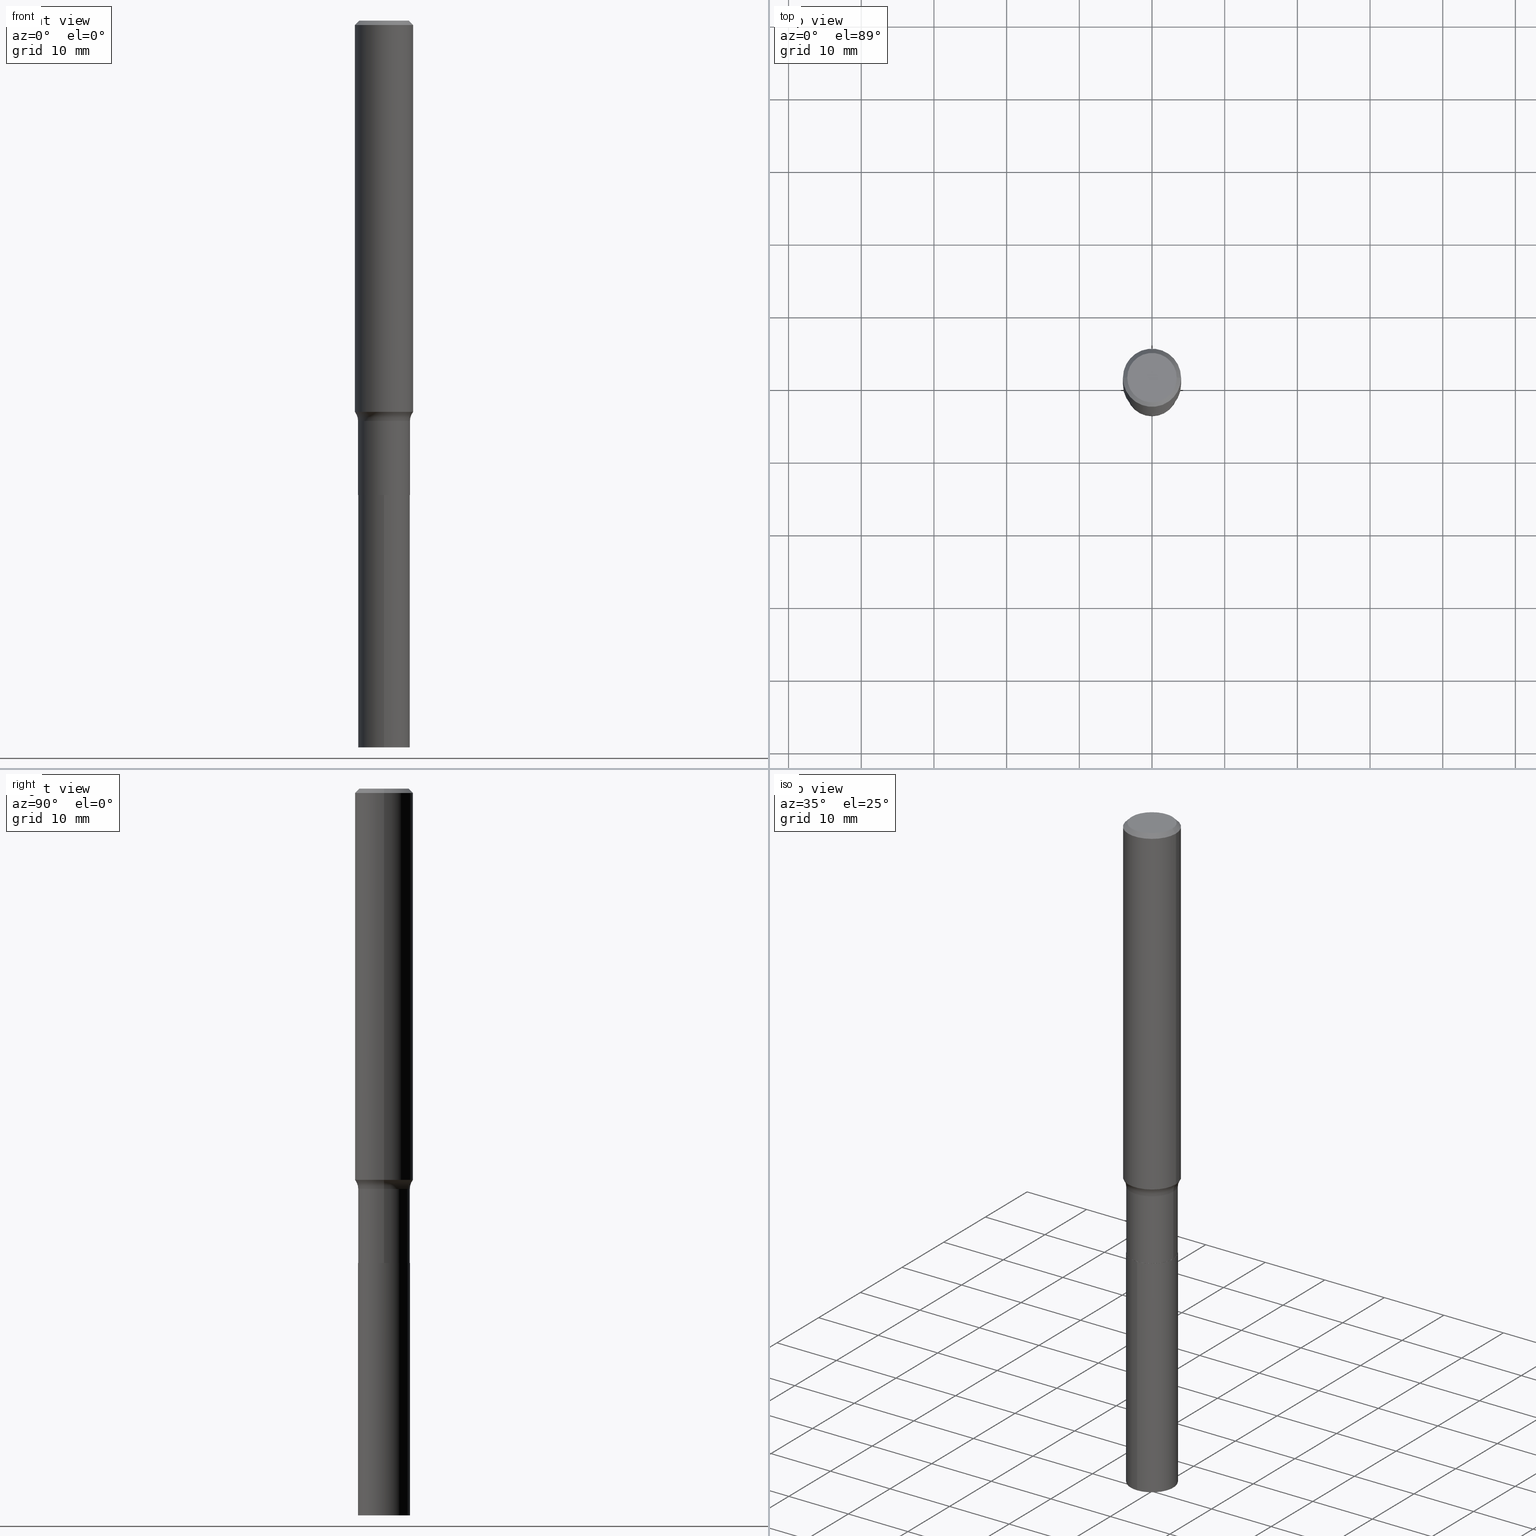
[diagram: canonical four-view strip — front | top / right | iso, engineering-drawing reading convention]
A machine part, canonical four-view strip (front | top / right | iso — engineering-drawing reading convention). The complete STEP part file that produces these views, byte-faithful:
ISO-10303-21;
HEADER;
FILE_DESCRIPTION (( 'STEP AP203' ),
    '1' );
FILE_NAME ('58893.STEP',
    '2024-04-19T14:48:24',
    ( '' ),
    ( '' ),
    'SwSTEP 2.0',
    'SolidWorks 2023',
    '' );
FILE_SCHEMA (( 'CONFIG_CONTROL_DESIGN' ));
ENDSEC;

DATA;
#1 = AXIS2_PLACEMENT_3D ( 'NONE', #40, #228, #186 ) ;
#2 = PRODUCT_DEFINITION_FORMATION_WITH_SPECIFIED_SOURCE ( 'ANY', '', #51, .NOT_KNOWN. ) ;
#3 = DATE_TIME_ROLE ( 'classification_date' ) ;
#4 = EDGE_CURVE ( 'NONE', #378, #241, #91, .T. ) ;
#5 = CARTESIAN_POINT ( 'NONE',  ( -0.1575000000000001676, 1.119104808822158984E-15, -7.747322767151485392E-30 ) ) ;
#6 = DIRECTION ( 'NONE',  ( 1.000000000000000000, -6.982962677686265133E-15, 0.000000000000000000 ) ) ;
#7 = FACE_OUTER_BOUND ( 'NONE', #173, .T. ) ;
#8 = VERTEX_POINT ( 'NONE', #213 ) ;
#9 = EDGE_CURVE ( 'NONE', #362, #246, #190, .T. ) ;
#10 = CIRCLE ( 'NONE', #276, 0.1406000000000000028 ) ;
#11 = AXIS2_PLACEMENT_3D ( 'NONE', #167, #129, #57 ) ;
#12 = DIRECTION ( 'NONE',  ( -2.445468806185136597E-29, 3.491481338843145583E-15, 1.000000000000000000 ) ) ;
#13 = DIRECTION ( 'NONE',  ( 1.000000000000000000, -6.982962677686266711E-15, 4.876176775795935232E-29 ) ) ;
#14 = CARTESIAN_POINT ( 'NONE',  ( 5.777420054612426359E-31, -8.248624663016990165E-17, -0.02362500000000017017 ) ) ;
#15 = ORIENTED_EDGE ( 'NONE', *, *, #284, .F. ) ;
#16 = AXIS2_PLACEMENT_3D ( 'NONE', #347, #131, #447 ) ;
#17 = CARTESIAN_POINT ( 'NONE',  ( 0.1575000000000003064, -8.500440321809438336E-15, -2.119622871169617451 ) ) ;
#18 = CC_DESIGN_APPROVAL ( #158, ( #2 ) ) ;
#19 = VERTEX_POINT ( 'NONE', #323 ) ;
#20 = DIRECTION ( 'NONE',  ( -1.000000000000000000, 7.105427357600995548E-15, 0.000000000000000000 ) ) ;
#21 = ORIENTED_EDGE ( 'NONE', *, *, #156, .F. ) ;
#22 = DIRECTION ( 'NONE',  ( 0.000000000000000000, 0.000000000000000000, 1.000000000000000000 ) ) ;
#23 = ORIENTED_EDGE ( 'NONE', *, *, #283, .T. ) ;
#24 = ORIENTED_EDGE ( 'NONE', *, *, #197, .T. ) ;
#25 = CONICAL_SURFACE ( 'NONE', #215, 0.1401000000000000023, 0.7853981633978239785 ) ;
#26 = CONICAL_SURFACE ( 'NONE', #382, 0.1401000000000000023, 0.7853981633978239785 ) ;
#27 = PERSON_AND_ORGANIZATION ( #244, #345 ) ;
#28 = VERTEX_POINT ( 'NONE', #421 ) ;
#29 = CARTESIAN_POINT ( 'NONE',  ( 0.1405999999999999750, -9.818045524826889086E-16, 6.855904546769083471E-30 ) ) ;
#30 = EDGE_CURVE ( 'NONE', #19, #271, #100, .T. ) ;
#31 = EDGE_LOOP ( 'NONE', ( #248, #282, #234, #307 ) ) ;
#32 = PERSON_AND_ORGANIZATION_ROLE ( 'classification_officer' ) ;
#33 = ADVANCED_FACE ( 'NONE', ( #105 ), #359, .F. ) ;
#34 = DIRECTION ( 'NONE',  ( 1.000000000000000000, -6.982962677686269077E-15, 0.000000000000000000 ) ) ;
#35 = CALENDAR_DATE ( 2024, 19, 4 ) ;
#36 = CYLINDRICAL_SURFACE ( 'NONE', #43, 0.1406000000000000028 ) ;
#37 = MANIFOLD_SOLID_BREP ( 'Body-Move/Copy2[1]', #292 ) ;
#38 = DATE_AND_TIME ( #258, #433 ) ;
#39 = MANIFOLD_SOLID_BREP ( 'Body-Move/Copy2[2]', #379 ) ;
#40 = CARTESIAN_POINT ( 'NONE',  ( 0.000000000000000000, 0.000000000000000000, 0.000000000000000000 ) ) ;
#41 = APPROVAL_DATE_TIME ( #286, #158 ) ;
#42 = CARTESIAN_POINT ( 'NONE',  ( -0.1575000000000003064, -6.281518891251688520E-15, -2.119622871169617451 ) ) ;
#43 = AXIS2_PLACEMENT_3D ( 'NONE', #157, #405, #329 ) ;
#44 = AXIS2_PLACEMENT_3D ( 'NONE', #376, #199, #237 ) ;
#45 = EDGE_CURVE ( 'NONE', #241, #378, #326, .T. ) ;
#46 = CARTESIAN_POINT ( 'NONE',  ( -0.1575000000000000011, -2.622450164529848973E-15, -0.02362500000000017017 ) ) ;
#47 = DIRECTION ( 'NONE',  ( 1.000000000000000000, -6.982962677686265922E-15, 0.000000000000000000 ) ) ;
#48 = APPROVAL ( #404, 'UNSPECIFIED' ) ;
#49 = ADVANCED_FACE ( 'NONE', ( #259 ), #36, .T. ) ;
#50 = DIRECTION ( 'NONE',  ( -2.445143853453058333E-29, 3.491946689650641980E-15, 1.000000000000000000 ) ) ;
#51 = PRODUCT ( '58893', '58893', '', ( #357 ) ) ;
#52 = CIRCLE ( 'NONE', #126, 0.08000000000000002942 ) ;
#53 = LINE ( 'NONE', #308, #334 ) ;
#54 = ORIENTED_EDGE ( 'NONE', *, *, #296, .T. ) ;
#55 = CARTESIAN_POINT ( 'NONE',  ( 1.328361699218630996E-28, 1.049518717513098027E-15, -2.570000000000000284 ) ) ;
#56 = ORIENTED_EDGE ( 'NONE', *, *, #187, .F. ) ;
#57 = DIRECTION ( 'NONE',  ( 6.982962677686265922E-15, 1.000000000000000000, -3.491946689650641980E-15 ) ) ;
#58 = EDGE_LOOP ( 'NONE', ( #206, #180, #315, #178 ) ) ;
#59 = AXIS2_PLACEMENT_3D ( 'NONE', #104, #358, #176 ) ;
#60 = CARTESIAN_POINT ( 'NONE',  ( 6.284854831895800067E-29, -8.973107040826881753E-15, -2.569999999999999840 ) ) ;
#61 = ADVANCED_FACE ( 'NONE', ( #327 ), #25, .T. ) ;
#62 = CC_DESIGN_SECURITY_CLASSIFICATION ( #336, ( #2 ) ) ;
#63 = ORIENTED_EDGE ( 'NONE', *, *, #45, .T. ) ;
#64 = CARTESIAN_POINT ( 'NONE',  ( 0.1405999999999999472, -8.554129280165703542E-15, -2.168800000000000061 ) ) ;
#65 = ORIENTED_EDGE ( 'NONE', *, *, #187, .T. ) ;
#66 = CARTESIAN_POINT ( 'NONE',  ( 0.000000000000000000, 0.000000000000000000, 0.000000000000000000 ) ) ;
#67 = AXIS2_PLACEMENT_3D ( 'NONE', #368, #257, #297 ) ;
#68 = CARTESIAN_POINT ( 'NONE',  ( 5.303732746854324050E-29, -7.572324727683015225E-15, -2.168800000000000061 ) ) ;
#69 = CIRCLE ( 'NONE', #175, 0.1575000000000000011 ) ;
#70 = DIRECTION ( 'NONE',  ( 1.000000000000000000, -6.982962677686267499E-15, 0.000000000000000000 ) ) ;
#71 = VERTEX_POINT ( 'NONE', #46 ) ;
#72 = CC_DESIGN_PERSON_AND_ORGANIZATION_ASSIGNMENT ( #27, #177, ( #51 ) ) ;
#73 = COORDINATED_UNIVERSAL_TIME_OFFSET ( 5, 0, .BEHIND. ) ;
#74 = DIRECTION ( 'NONE',  ( -2.445468806185136597E-29, 3.491481338843145583E-15, 1.000000000000000000 ) ) ;
#75 = DATE_AND_TIME ( #338, #145 ) ;
#76 = PLANE ( 'NONE',  #272 ) ;
#77 = CIRCLE ( 'NONE', #222, 0.1406000000000000028 ) ;
#78 =( GEOMETRIC_REPRESENTATION_CONTEXT ( 3 ) GLOBAL_UNCERTAINTY_ASSIGNED_CONTEXT ( ( #457 ) ) GLOBAL_UNIT_ASSIGNED_CONTEXT ( ( #452, #135, #101 ) ) REPRESENTATION_CONTEXT ( 'NONE', 'WORKASPACE' ) );
#79 = CARTESIAN_POINT ( 'NONE',  ( 6.284854831895800067E-29, -8.973107040826881753E-15, -2.569999999999999840 ) ) ;
#80 = PRODUCT_DEFINITION ( 'UNKNOWN', '', #2, #311 ) ;
#81 = COORDINATED_UNIVERSAL_TIME_OFFSET ( 5, 0, .BEHIND. ) ;
#82 = DIRECTION ( 'NONE',  ( 1.000000000000000000, -6.982962677686266711E-15, 4.876170806578254279E-29 ) ) ;
#83 = CARTESIAN_POINT ( 'NONE',  ( 0.1401000000000000023, -9.951420111970728641E-15, -2.569999999999999840 ) ) ;
#84 = CONICAL_SURFACE ( 'NONE', #401, 0.1575000000000000011, 0.7853981633974445042 ) ;
#85 = EDGE_CURVE ( 'NONE', #246, #362, #439, .T. ) ;
#86 = CARTESIAN_POINT ( 'NONE',  ( 9.990230864787973191E-16, 0.1405999999999910377, -2.570000000000000728 ) ) ;
#87 = FACE_OUTER_BOUND ( 'NONE', #397, .T. ) ;
#88 = EDGE_LOOP ( 'NONE', ( #351, #24, #166, #56 ) ) ;
#89 = CARTESIAN_POINT ( 'NONE',  ( -9.818045524826261942E-16, -0.1406000000000089678, -2.569999999999999840 ) ) ;
#90 = ORIENTED_EDGE ( 'NONE', *, *, #449, .T. ) ;
#91 = CIRCLE ( 'NONE', #270, 0.1406000000000000028 ) ;
#92 = VECTOR ( 'NONE', #263, 39.37007874015748854 ) ;
#93 = AXIS2_PLACEMENT_3D ( 'NONE', #461, #133, #70 ) ;
#94 = CARTESIAN_POINT ( 'NONE',  ( -1.055511869207558099E-29, -2.904508799269858820E-14, -3.937000000000000277 ) ) ;
#95 = EDGE_CURVE ( 'NONE', #210, #71, #430, .T. ) ;
#96 = DIRECTION ( 'NONE',  ( -2.438088387897960049E-29, 3.491481338843145188E-15, 1.000000000000000000 ) ) ;
#97 = EDGE_LOOP ( 'NONE', ( #346, #218, #268, #313 ) ) ;
#98 = ADVANCED_FACE ( 'NONE', ( #155 ), #419, .T. ) ;
#99 = CYLINDRICAL_SURFACE ( 'NONE', #285, 0.1575000000000001676 ) ;
#100 = CIRCLE ( 'NONE', #59, 0.1406000000000000028 ) ;
#101 =( NAMED_UNIT ( * ) SI_UNIT ( $, .STERADIAN. ) SOLID_ANGLE_UNIT ( ) );
#102 = ORIENTED_EDGE ( 'NONE', *, *, #85, .T. ) ;
#103 = CARTESIAN_POINT ( 'NONE',  ( 6.284854831895800067E-29, -8.973107040826881753E-15, -2.569999999999999840 ) ) ;
#104 = CARTESIAN_POINT ( 'NONE',  ( 9.627366479566134835E-29, -1.374659816557931352E-14, -3.937000000000000721 ) ) ;
#105 = FACE_OUTER_BOUND ( 'NONE', #266, .T. ) ;
#106 = APPROVAL_ROLE ( '' ) ;
#107 = AXIS2_PLACEMENT_3D ( 'NONE', #238, #341, #231 ) ;
#108 = ORIENTED_EDGE ( 'NONE', *, *, #438, .F. ) ;
#109 = ORIENTED_EDGE ( 'NONE', *, *, #245, .T. ) ;
#110 = ADVANCED_FACE ( 'NONE', ( #295 ), #339, .T. ) ;
#111 = DIRECTION ( 'NONE',  ( 1.000000000000000000, -6.982962677686268288E-15, 0.000000000000000000 ) ) ;
#112 = EDGE_CURVE ( 'NONE', #271, #19, #77, .T. ) ;
#113 = DIRECTION ( 'NONE',  ( -2.445143853453058613E-29, 3.491946689650641980E-15, 1.000000000000000000 ) ) ;
#114 = CIRCLE ( 'NONE', #200, 0.1575000000000000011 ) ;
#115 = PERSON_AND_ORGANIZATION ( #244, #345 ) ;
#116 = LINE ( 'NONE', #148, #256 ) ;
#117 = DIRECTION ( 'NONE',  ( -2.445468806185136597E-29, 3.491481338843145583E-15, 1.000000000000000000 ) ) ;
#118 = CARTESIAN_POINT ( 'NONE',  ( 0.1401000000000000023, -9.951420111970728641E-15, -2.569999999999999840 ) ) ;
#119 = AXIS2_PLACEMENT_3D ( 'NONE', #393, #184, #191 ) ;
#120 = CYLINDRICAL_SURFACE ( 'NONE', #143, 0.1405999999999999750 ) ;
#121 = ORIENTED_EDGE ( 'NONE', *, *, #314, .F. ) ;
#122 = CARTESIAN_POINT ( 'NONE',  ( 0.1575000000000000011, -1.163014681279186162E-15, -0.02362500000000017017 ) ) ;
#123 = EDGE_LOOP ( 'NONE', ( #139, #90, #386, #252 ) ) ;
#124 = DIRECTION ( 'NONE',  ( -2.445468806185136597E-29, 3.491481338843145583E-15, 1.000000000000000000 ) ) ;
#125 = ORIENTED_EDGE ( 'NONE', *, *, #425, .T. ) ;
#126 = AXIS2_PLACEMENT_3D ( 'NONE', #265, #343, #348 ) ;
#127 = CIRCLE ( 'NONE', #412, 0.1401000000000000023 ) ;
#128 = LOCAL_TIME ( 10, 48, 24.00000000000000000, #142 ) ;
#129 = DIRECTION ( 'NONE',  ( 2.445143853453058333E-29, -3.491946689650641980E-15, -1.000000000000000000 ) ) ;
#130 = ORIENTED_EDGE ( 'NONE', *, *, #289, .F. ) ;
#131 = DIRECTION ( 'NONE',  ( -2.445468806185136597E-29, 3.491481338843145583E-15, 1.000000000000000000 ) ) ;
#132 = CC_DESIGN_DATE_AND_TIME_ASSIGNMENT ( #75, #3, ( #336 ) ) ;
#133 = DIRECTION ( 'NONE',  ( -2.445468806185136597E-29, 3.491481338843145583E-15, 1.000000000000000000 ) ) ;
#134 = CARTESIAN_POINT ( 'NONE',  ( 6.284854831895801188E-29, -8.973107040826884909E-15, -2.570000000000000284 ) ) ;
#135 =( NAMED_UNIT ( * ) PLANE_ANGLE_UNIT ( ) SI_UNIT ( $, .RADIAN. ) );
#136 = APPROVAL_PERSON_ORGANIZATION ( #226, #158, #365 ) ;
#137 = DIRECTION ( 'NONE',  ( -2.445468806185136597E-29, 3.491481338843145583E-15, 1.000000000000000000 ) ) ;
#138 = DIRECTION ( 'NONE',  ( -1.000000000000000000, 6.982962677686265922E-15, -4.876176775795935793E-29 ) ) ;
#139 = ORIENTED_EDGE ( 'NONE', *, *, #95, .F. ) ;
#140 = APPROVAL_STATUS ( 'not_yet_approved' ) ;
#141 = ORIENTED_EDGE ( 'NONE', *, *, #239, .F. ) ;
#142 = COORDINATED_UNIVERSAL_TIME_OFFSET ( 5, 0, .BEHIND. ) ;
#143 = AXIS2_PLACEMENT_3D ( 'NONE', #443, #233, #13 ) ;
#144 = VERTEX_POINT ( 'NONE', #298 ) ;
#145 = LOCAL_TIME ( 10, 48, 24.00000000000000000, #147 ) ;
#146 = EDGE_CURVE ( 'NONE', #8, #446, #344, .T. ) ;
#147 = COORDINATED_UNIVERSAL_TIME_OFFSET ( 5, 0, .BEHIND. ) ;
#148 = CARTESIAN_POINT ( 'NONE',  ( 9.990230864787635953E-16, 0.1405999999999910099, -2.570000000000000728 ) ) ;
#149 = APPROVAL_DATE_TIME ( #260, #48 ) ;
#150 = CARTESIAN_POINT ( 'NONE',  ( -1.002970424325032604E-46, 1.431975951230895391E-32, 4.101342130344482109E-18 ) ) ;
#151 = PERSON_AND_ORGANIZATION ( #244, #345 ) ;
#152 = FACE_OUTER_BOUND ( 'NONE', #287, .T. ) ;
#153 = CIRCLE ( 'NONE', #93, 0.1575000000000003064 ) ;
#154 = CALENDAR_DATE ( 2024, 19, 4 ) ;
#155 = FACE_OUTER_BOUND ( 'NONE', #342, .T. ) ;
#156 = EDGE_CURVE ( 'NONE', #271, #241, #116, .T. ) ;
#157 = CARTESIAN_POINT ( 'NONE',  ( 6.284854831895801188E-29, -8.973107040826884909E-15, -2.570000000000000284 ) ) ;
#158 = APPROVAL ( #219, 'UNSPECIFIED' ) ;
#159 = DIRECTION ( 'NONE',  ( 2.445468806185136597E-29, -3.491481338843145583E-15, -1.000000000000000000 ) ) ;
#160 = EDGE_LOOP ( 'NONE', ( #451, #254, #65, #121 ) ) ;
#161 = AXIS2_PLACEMENT_3D ( 'NONE', #455, #137, #320 ) ;
#162 = ADVANCED_FACE ( 'NONE', ( #290 ), #235, .F. ) ;
#163 = DIRECTION ( 'NONE',  ( -1.000000000000000000, 6.982962677686265922E-15, 0.000000000000000000 ) ) ;
#164 = ORIENTED_EDGE ( 'NONE', *, *, #449, .F. ) ;
#165 = CARTESIAN_POINT ( 'NONE',  ( 5.183471612321876501E-29, -7.400623700073848490E-15, -2.119622871169617451 ) ) ;
#166 = ORIENTED_EDGE ( 'NONE', *, *, #174, .F. ) ;
#167 = CARTESIAN_POINT ( 'NONE',  ( 6.284854831895801188E-29, -8.973107040826884909E-15, -2.570000000000000284 ) ) ;
#168 = VERTEX_POINT ( 'NONE', #118 ) ;
#169 = FACE_OUTER_BOUND ( 'NONE', #31, .T. ) ;
#170 = ORIENTED_EDGE ( 'NONE', *, *, #373, .F. ) ;
#171 = ORIENTED_EDGE ( 'NONE', *, *, #214, .F. ) ;
#172 = DIRECTION ( 'NONE',  ( -0.7071067811865447972, 2.468850131082228662E-15, -0.7071067811865501263 ) ) ;
#173 = EDGE_LOOP ( 'NONE', ( #355, #418, #444, #279 ) ) ;
#174 = EDGE_CURVE ( 'NONE', #28, #388, #10, .T. ) ;
#175 = AXIS2_PLACEMENT_3D ( 'NONE', #409, #12, #47 ) ;
#176 = DIRECTION ( 'NONE',  ( -6.982962677686265133E-15, -1.000000000000000000, 3.885985766236505386E-15 ) ) ;
#177 = PERSON_AND_ORGANIZATION_ROLE ( 'design_owner' ) ;
#178 = ORIENTED_EDGE ( 'NONE', *, *, #262, .T. ) ;
#179 = DIRECTION ( 'NONE',  ( -2.445468806185136597E-29, 3.491481338843145583E-15, 1.000000000000000000 ) ) ;
#180 = ORIENTED_EDGE ( 'NONE', *, *, #9, .F. ) ;
#181 = AXIS2_PLACEMENT_3D ( 'NONE', #375, #74, #34 ) ;
#182 = FACE_OUTER_BOUND ( 'NONE', #462, .T. ) ;
#183 = DATE_AND_TIME ( #35, #448 ) ;
#184 = DIRECTION ( 'NONE',  ( -2.445143853453058613E-29, 3.491946689650641980E-15, 1.000000000000000000 ) ) ;
#185 = DATE_TIME_ROLE ( 'creation_date' ) ;
#186 = DIRECTION ( 'NONE',  ( 1.000000000000000000, -6.982962677686267499E-15, 4.876176775795935232E-29 ) ) ;
#187 = EDGE_CURVE ( 'NONE', #168, #28, #370, .T. ) ;
#188 = APPROVAL_DATE_TIME ( #183, #330 ) ;
#189 = ADVANCED_FACE ( 'NONE', ( #152 ), #372, .T. ) ;
#190 = CIRCLE ( 'NONE', #161, 0.1338749999999999940 ) ;
#191 = DIRECTION ( 'NONE',  ( -6.982962677686265133E-15, -1.000000000000000000, 3.885985766236505386E-15 ) ) ;
#192 = CIRCLE ( 'NONE', #107, 0.1405999999999999472 ) ;
#193 = VECTOR ( 'NONE', #172, 39.37007874015748854 ) ;
#194 = COORDINATED_UNIVERSAL_TIME_OFFSET ( 5, 0, .BEHIND. ) ;
#195 = DIRECTION ( 'NONE',  ( -2.445468806185136597E-29, 3.491481338843145583E-15, 1.000000000000000000 ) ) ;
#196 = CARTESIAN_POINT ( 'NONE',  ( -0.1401000000000000023, -7.974987440852871753E-15, -2.569999999999999840 ) ) ;
#197 = EDGE_CURVE ( 'NONE', #250, #388, #332, .T. ) ;
#198 = DIMENSIONAL_EXPONENTS ( 1.000000000000000000, 0.000000000000000000, 0.000000000000000000, 0.000000000000000000, 0.000000000000000000, 0.000000000000000000, 0.000000000000000000 ) ;
#199 = DIRECTION ( 'NONE',  ( -2.445468806185136597E-29, 3.491481338843145583E-15, 1.000000000000000000 ) ) ;
#200 = AXIS2_PLACEMENT_3D ( 'NONE', #445, #124, #413 ) ;
#201 = APPROVAL_PERSON_ORGANIZATION ( #151, #48, #369 ) ;
#202 = DIRECTION ( 'NONE',  ( -2.445143853453058613E-29, 3.491946689650641980E-15, 1.000000000000000000 ) ) ;
#203 = PLANE ( 'NONE',  #11 ) ;
#204 = ORIENTED_EDGE ( 'NONE', *, *, #95, .T. ) ;
#205 = LINE ( 'NONE', #441, #310 ) ;
#206 = ORIENTED_EDGE ( 'NONE', *, *, #245, .F. ) ;
#207 = CIRCLE ( 'NONE', #264, 0.1575000000000003064 ) ;
#208 = CC_DESIGN_APPROVAL ( #330, ( #80 ) ) ;
#209 = LINE ( 'NONE', #278, #193 ) ;
#210 = VERTEX_POINT ( 'NONE', #42 ) ;
#211 = DIRECTION ( 'NONE',  ( -2.445143853453058613E-29, 3.491946689650641980E-15, 1.000000000000000000 ) ) ;
#212 = CARTESIAN_POINT ( 'NONE',  ( 0.000000000000000000, 0.000000000000000000, 0.000000000000000000 ) ) ;
#213 = CARTESIAN_POINT ( 'NONE',  ( -0.1405999999999999472, -7.272819927441538434E-15, -2.168800000000000061 ) ) ;
#214 = EDGE_CURVE ( 'NONE', #250, #168, #389, .T. ) ;
#215 = AXIS2_PLACEMENT_3D ( 'NONE', #79, #195, #223 ) ;
#216 = DIRECTION ( 'NONE',  ( -2.445468806185136597E-29, 3.491481338843145583E-15, 1.000000000000000000 ) ) ;
#217 = CARTESIAN_POINT ( 'NONE',  ( -0.1338749999999999940, 9.760872517903331886E-16, 4.101342130337800673E-18 ) ) ;
#218 = ORIENTED_EDGE ( 'NONE', *, *, #283, .F. ) ;
#219 = APPROVAL_STATUS ( 'not_yet_approved' ) ;
#220 = CARTESIAN_POINT ( 'NONE',  ( 5.777420054612426359E-31, -8.248624663016990165E-17, -0.02362500000000017017 ) ) ;
#221 = PERSON_AND_ORGANIZATION_ROLE ( 'creator' ) ;
#222 = AXIS2_PLACEMENT_3D ( 'NONE', #227, #113, #466 ) ;
#223 = DIRECTION ( 'NONE',  ( 1.000000000000000000, -6.982962677686269077E-15, 0.000000000000000000 ) ) ;
#224 = DIRECTION ( 'NONE',  ( -2.445468806185136597E-29, 3.491481338843145583E-15, 1.000000000000000000 ) ) ;
#225 = ADVANCED_FACE ( 'NONE', ( #182 ), #76, .F. ) ;
#226 = PERSON_AND_ORGANIZATION ( #244, #345 ) ;
#227 = CARTESIAN_POINT ( 'NONE',  ( 9.627366479566134835E-29, -1.374659816557931352E-14, -3.937000000000000721 ) ) ;
#228 = DIRECTION ( 'NONE',  ( -2.445468806185136597E-29, 3.491481338843145583E-15, 1.000000000000000000 ) ) ;
#229 = AXIS2_PLACEMENT_3D ( 'NONE', #94, #50, #273 ) ;
#230 = ADVANCED_FACE ( 'NONE', ( #169 ), #120, .T. ) ;
#231 = DIRECTION ( 'NONE',  ( 1.000000000000000000, -6.982962677686268288E-15, 0.000000000000000000 ) ) ;
#232 = FACE_OUTER_BOUND ( 'NONE', #453, .T. ) ;
#233 = DIRECTION ( 'NONE',  ( -2.445468806185136597E-29, 3.491481338843145583E-15, 1.000000000000000000 ) ) ;
#234 = ORIENTED_EDGE ( 'NONE', *, *, #304, .F. ) ;
#235 = TOROIDAL_SURFACE ( 'NONE', #381, 0.2205999999999999628, 0.08000000000000002942 ) ;
#236 = CC_DESIGN_APPROVAL ( #48, ( #336 ) ) ;
#237 = DIRECTION ( 'NONE',  ( 1.000000000000000000, -6.982962677686265133E-15, 0.000000000000000000 ) ) ;
#238 = CARTESIAN_POINT ( 'NONE',  ( 5.303732746854324050E-29, -7.572324727683015225E-15, -2.168800000000000061 ) ) ;
#239 = EDGE_CURVE ( 'NONE', #144, #71, #69, .T. ) ;
#240 = DIRECTION ( 'NONE',  ( 1.000000000000000000, -6.982962677686269077E-15, 0.000000000000000000 ) ) ;
#241 = VERTEX_POINT ( 'NONE', #86 ) ;
#242 = VECTOR ( 'NONE', #450, 39.37007874015748854 ) ;
#243 = FACE_OUTER_BOUND ( 'NONE', #88, .T. ) ;
#244 = PERSON ( 'UNSPECIFIED', 'UNSPECIFIED', 'UNSPECIFIED', ('UNSPECIFIED'), ('UNSPECIFIED'), ('UNSPECIFIED') ) ;
#245 = EDGE_CURVE ( 'NONE', #246, #144, #410, .T. ) ;
#246 = VERTEX_POINT ( 'NONE', #305 ) ;
#247 = APPLICATION_PROTOCOL_DEFINITION ( 'international standard', 'config_control_design', 1994, #337 ) ;
#248 = ORIENTED_EDGE ( 'NONE', *, *, #174, .T. ) ;
#249 = LINE ( 'NONE', #29, #426 ) ;
#250 = VERTEX_POINT ( 'NONE', #196 ) ;
#251 = DIRECTION ( 'NONE',  ( -2.445468806185136597E-29, 3.491481338843145583E-15, 1.000000000000000000 ) ) ;
#252 = ORIENTED_EDGE ( 'NONE', *, *, #262, .F. ) ;
#253 = ADVANCED_FACE ( 'NONE', ( #380 ), #84, .T. ) ;
#254 = ORIENTED_EDGE ( 'NONE', *, *, #214, .T. ) ;
#255 = CARTESIAN_POINT ( 'NONE',  ( -0.1401000000000000023, -7.977636668026982165E-15, -2.569999999999999840 ) ) ;
#256 = VECTOR ( 'NONE', #366, 39.37007874015748143 ) ;
#257 = DIRECTION ( 'NONE',  ( -2.445143853453058613E-29, 3.491946689650641980E-15, 1.000000000000000000 ) ) ;
#258 = CALENDAR_DATE ( 2024, 19, 4 ) ;
#259 = FACE_OUTER_BOUND ( 'NONE', #281, .T. ) ;
#260 = DATE_AND_TIME ( #154, #128 ) ;
#261 = DIRECTION ( 'NONE',  ( 1.000000000000000000, -6.982962677686265922E-15, 4.883557194083112901E-29 ) ) ;
#262 = EDGE_CURVE ( 'NONE', #71, #144, #114, .T. ) ;
#263 = DIRECTION ( 'NONE',  ( 0.7071067811868130271, -2.468850131085038979E-15, 0.7071067811862817853 ) ) ;
#264 = AXIS2_PLACEMENT_3D ( 'NONE', #165, #302, #267 ) ;
#265 = CARTESIAN_POINT ( 'NONE',  ( 0.2205999999999999628, -9.112766294380605194E-15, -2.168800000000000061 ) ) ;
#266 = EDGE_LOOP ( 'NONE', ( #164, #125, #383, #130 ) ) ;
#267 = DIRECTION ( 'NONE',  ( 1.000000000000000000, -6.982962677686267499E-15, 0.000000000000000000 ) ) ;
#268 = ORIENTED_EDGE ( 'NONE', *, *, #289, .T. ) ;
#269 = DIRECTION ( 'NONE',  ( 1.000000000000000000, -6.982962677686265922E-15, 4.876176775795935793E-29 ) ) ;
#270 = AXIS2_PLACEMENT_3D ( 'NONE', #134, #211, #356 ) ;
#271 = VERTEX_POINT ( 'NONE', #384 ) ;
#272 = AXIS2_PLACEMENT_3D ( 'NONE', #55, #96, #269 ) ;
#273 = DIRECTION ( 'NONE',  ( -6.982962677686265922E-15, -1.000000000000000000, 3.491946689650641980E-15 ) ) ;
#274 =( LENGTH_UNIT ( ) NAMED_UNIT ( * ) SI_UNIT ( $, .METRE. ) );
#275 = EDGE_LOOP ( 'NONE', ( #318, #398, #459, #325 ) ) ;
#276 = AXIS2_PLACEMENT_3D ( 'NONE', #431, #406, #6 ) ;
#277 = AXIS2_PLACEMENT_3D ( 'NONE', #66, #22, #396 ) ;
#278 = CARTESIAN_POINT ( 'NONE',  ( -0.1575000000000000011, 1.017330375105417098E-15, -0.02362500000000017017 ) ) ;
#279 = ORIENTED_EDGE ( 'NONE', *, *, #146, .F. ) ;
#280 = FACE_OUTER_BOUND ( 'NONE', #123, .T. ) ;
#281 = EDGE_LOOP ( 'NONE', ( #21, #391, #54, #390 ) ) ;
#282 = ORIENTED_EDGE ( 'NONE', *, *, #340, .T. ) ;
#283 = EDGE_CURVE ( 'NONE', #303, #210, #207, .T. ) ;
#284 = EDGE_CURVE ( 'NONE', #303, #144, #53, .T. ) ;
#285 = AXIS2_PLACEMENT_3D ( 'NONE', #212, #251, #387 ) ;
#286 = DATE_AND_TIME ( #371, #402 ) ;
#287 = EDGE_LOOP ( 'NONE', ( #23, #204, #141, #15 ) ) ;
#288 = CARTESIAN_POINT ( 'NONE',  ( 5.303732746854324050E-29, -7.572324727683015225E-15, -2.168800000000000061 ) ) ;
#289 = EDGE_CURVE ( 'NONE', #303, #446, #52, .T. ) ;
#290 = FACE_OUTER_BOUND ( 'NONE', #97, .T. ) ;
#291 = PERSON_AND_ORGANIZATION ( #244, #345 ) ;
#292 = CLOSED_SHELL ( 'NONE', ( #110, #309, #49, #322 ) ) ;
#293 = CC_DESIGN_PERSON_AND_ORGANIZATION_ASSIGNMENT ( #467, #221, ( #2 ) ) ;
#294 = VECTOR ( 'NONE', #434, 39.37007874015748143 ) ;
#295 = FACE_OUTER_BOUND ( 'NONE', #275, .T. ) ;
#296 = EDGE_CURVE ( 'NONE', #19, #378, #411, .T. ) ;
#297 = DIRECTION ( 'NONE',  ( -6.982962677686265133E-15, -1.000000000000000000, 3.885985766236505386E-15 ) ) ;
#298 = CARTESIAN_POINT ( 'NONE',  ( 0.1575000000000000011, -1.182302868365756877E-15, -0.02362500000000017017 ) ) ;
#299 = CC_DESIGN_PERSON_AND_ORGANIZATION_ASSIGNMENT ( #115, #333, ( #2 ) ) ;
#300 = CYLINDRICAL_SURFACE ( 'NONE', #16, 0.1405999999999999750 ) ;
#301 = APPLICATION_CONTEXT ( 'configuration controlled 3d designs of mechanical parts and assemblies' ) ;
#302 = DIRECTION ( 'NONE',  ( -2.445468806185136597E-29, 3.491481338843145583E-15, 1.000000000000000000 ) ) ;
#303 = VERTEX_POINT ( 'NONE', #17 ) ;
#304 = EDGE_CURVE ( 'NONE', #446, #8, #192, .T. ) ;
#305 = CARTESIAN_POINT ( 'NONE',  ( 0.1338749999999999940, -1.040731925365424925E-15, 4.101342130351390035E-18 ) ) ;
#306 = ADVANCED_FACE ( 'NONE', ( #7 ), #300, .T. ) ;
#307 = ORIENTED_EDGE ( 'NONE', *, *, #435, .F. ) ;
#308 = CARTESIAN_POINT ( 'NONE',  ( 0.1575000000000001676, -1.099816621735588269E-15, 7.679978421878606441E-30 ) ) ;
#309 = ADVANCED_FACE ( 'NONE', ( #350 ), #385, .F. ) ;
#310 = VECTOR ( 'NONE', #408, 39.37007874015748143 ) ;
#311 = DESIGN_CONTEXT ( 'detailed design', #301, 'design' ) ;
#312 = DIRECTION ( 'NONE',  ( -2.445468806185136877E-29, 3.491481338843145188E-15, 1.000000000000000000 ) ) ;
#313 = ORIENTED_EDGE ( 'NONE', *, *, #304, .T. ) ;
#314 = EDGE_CURVE ( 'NONE', #388, #28, #352, .T. ) ;
#315 = ORIENTED_EDGE ( 'NONE', *, *, #373, .T. ) ;
#316 = CC_DESIGN_PERSON_AND_ORGANIZATION_ASSIGNMENT ( #465, #32, ( #336 ) ) ;
#317 = DIRECTION ( 'NONE',  ( 1.000000000000000000, -6.982962677686269077E-15, 0.000000000000000000 ) ) ;
#318 = ORIENTED_EDGE ( 'NONE', *, *, #30, .T. ) ;
#319 = AXIS2_PLACEMENT_3D ( 'NONE', #150, #437, #82 ) ;
#320 = DIRECTION ( 'NONE',  ( 1.000000000000000000, -6.982962677686266711E-15, 4.876170806578254279E-29 ) ) ;
#321 = APPLICATION_PROTOCOL_DEFINITION ( 'international standard', 'config_control_design', 1994, #301 ) ;
#322 = ADVANCED_FACE ( 'NONE', ( #232 ), #203, .F. ) ;
#323 = CARTESIAN_POINT ( 'NONE',  ( -9.818045524825926676E-16, -0.1406000000000137418, -3.937000000000000277 ) ) ;
#324 = CARTESIAN_POINT ( 'NONE',  ( -0.1406000000000000028, -7.272819927441538434E-15, -2.569500000000000117 ) ) ;
#325 = ORIENTED_EDGE ( 'NONE', *, *, #296, .F. ) ;
#326 = CIRCLE ( 'NONE', #119, 0.1406000000000000028 ) ;
#327 = FACE_OUTER_BOUND ( 'NONE', #160, .T. ) ;
#328 = SECURITY_CLASSIFICATION_LEVEL ( 'unclassified' ) ;
#329 = DIRECTION ( 'NONE',  ( -6.982962677686265133E-15, -1.000000000000000000, 3.885985766236505386E-15 ) ) ;
#330 = APPROVAL ( #140, 'UNSPECIFIED' ) ;
#331 = PERSON_AND_ORGANIZATION_ROLE ( 'creator' ) ;
#332 = LINE ( 'NONE', #255, #374 ) ;
#333 = PERSON_AND_ORGANIZATION_ROLE ( 'design_supplier' ) ;
#334 = VECTOR ( 'NONE', #312, 39.37007874015748143 ) ;
#335 = DIRECTION ( 'NONE',  ( 1.000000000000000000, -6.982962677686265922E-15, 4.883557194083112901E-29 ) ) ;
#336 = SECURITY_CLASSIFICATION ( '', '', #328 ) ;
#337 = APPLICATION_CONTEXT ( 'configuration controlled 3d designs of mechanical parts and assemblies' ) ;
#338 = CALENDAR_DATE ( 2024, 19, 4 ) ;
#339 = CYLINDRICAL_SURFACE ( 'NONE', #67, 0.1406000000000000028 ) ;
#340 = EDGE_CURVE ( 'NONE', #388, #8, #205, .T. ) ;
#341 = DIRECTION ( 'NONE',  ( -2.445468806185136597E-29, 3.491481338843145583E-15, 1.000000000000000000 ) ) ;
#342 = EDGE_LOOP ( 'NONE', ( #416, #109, #349, #170 ) ) ;
#343 = DIRECTION ( 'NONE',  ( -6.982962677686266711E-15, -1.000000000000000000, 3.491481338843145583E-15 ) ) ;
#344 = CIRCLE ( 'NONE', #432, 0.1405999999999999472 ) ;
#345 = ORGANIZATION ( 'UNSPECIFIED', 'UNSPECIFIED', '' ) ;
#346 = ORIENTED_EDGE ( 'NONE', *, *, #425, .F. ) ;
#347 = CARTESIAN_POINT ( 'NONE',  ( 0.000000000000000000, 0.000000000000000000, 0.000000000000000000 ) ) ;
#348 = DIRECTION ( 'NONE',  ( 1.000000000000000000, -6.982962677686257244E-15, 0.000000000000000000 ) ) ;
#349 = ORIENTED_EDGE ( 'NONE', *, *, #239, .T. ) ;
#350 = FACE_OUTER_BOUND ( 'NONE', #364, .T. ) ;
#351 = ORIENTED_EDGE ( 'NONE', *, *, #438, .T. ) ;
#352 = CIRCLE ( 'NONE', #44, 0.1406000000000000028 ) ;
#353 = AXIS2_PLACEMENT_3D ( 'NONE', #363, #354, #20 ) ;
#354 = DIRECTION ( 'NONE',  ( 7.105427357601001859E-15, 1.000000000000000000, -3.491481338843145583E-15 ) ) ;
#355 = ORIENTED_EDGE ( 'NONE', *, *, #340, .F. ) ;
#356 = DIRECTION ( 'NONE',  ( -6.982962677686265133E-15, -1.000000000000000000, 3.885985766236505386E-15 ) ) ;
#357 = MECHANICAL_CONTEXT ( 'NONE', #337, 'mechanical' ) ;
#358 = DIRECTION ( 'NONE',  ( -2.445143853453058613E-29, 3.491946689650641980E-15, 1.000000000000000000 ) ) ;
#359 = TOROIDAL_SURFACE ( 'NONE', #367, 0.2205999999999999628, 0.08000000000000002942 ) ;
#360 = AXIS2_PLACEMENT_3D ( 'NONE', #392, #423, #138 ) ;
#361 = ADVANCED_FACE ( 'NONE', ( #87 ), #377, .F. ) ;
#362 = VERTEX_POINT ( 'NONE', #217 ) ;
#363 = CARTESIAN_POINT ( 'NONE',  ( -0.2205999999999999628, -6.004867452596234085E-15, -2.168800000000000061 ) ) ;
#364 = EDGE_LOOP ( 'NONE', ( #442, #427 ) ) ;
#365 = APPROVAL_ROLE ( '' ) ;
#366 = DIRECTION ( 'NONE',  ( -2.445143853453058613E-29, 3.491946689650641980E-15, 1.000000000000000000 ) ) ;
#367 = AXIS2_PLACEMENT_3D ( 'NONE', #68, #216, #335 ) ;
#368 = CARTESIAN_POINT ( 'NONE',  ( 6.284854831895801188E-29, -8.973107040826884909E-15, -2.570000000000000284 ) ) ;
#369 = APPROVAL_ROLE ( '' ) ;
#370 = LINE ( 'NONE', #83, #92 ) ;
#371 = CALENDAR_DATE ( 2024, 19, 4 ) ;
#372 = CYLINDRICAL_SURFACE ( 'NONE', #1, 0.1575000000000001676 ) ;
#373 = EDGE_CURVE ( 'NONE', #362, #71, #209, .T. ) ;
#374 = VECTOR ( 'NONE', #468, 39.37007874015748854 ) ;
#375 = CARTESIAN_POINT ( 'NONE',  ( 6.284854831895800067E-29, -8.973107040826881753E-15, -2.569999999999999840 ) ) ;
#376 = CARTESIAN_POINT ( 'NONE',  ( 6.283632097492708387E-29, -8.971361300157462616E-15, -2.569500000000000117 ) ) ;
#377 = PLANE ( 'NONE',  #360 ) ;
#378 = VERTEX_POINT ( 'NONE', #415 ) ;
#379 = CLOSED_SHELL ( 'NONE', ( #420, #98, #189, #33, #230, #306, #162, #414, #253, #361, #225, #61 ) ) ;
#380 = FACE_OUTER_BOUND ( 'NONE', #58, .T. ) ;
#381 = AXIS2_PLACEMENT_3D ( 'NONE', #288, #224, #261 ) ;
#382 = AXIS2_PLACEMENT_3D ( 'NONE', #60, #417, #240 ) ;
#383 = ORIENTED_EDGE ( 'NONE', *, *, #146, .T. ) ;
#384 = CARTESIAN_POINT ( 'NONE',  ( 9.990230864787803586E-16, 0.1405999999999862637, -3.937000000000001165 ) ) ;
#385 = PLANE ( 'NONE',  #229 ) ;
#386 = ORIENTED_EDGE ( 'NONE', *, *, #284, .T. ) ;
#387 = DIRECTION ( 'NONE',  ( 1.000000000000000000, -6.982962677686267499E-15, 4.876176775795935232E-29 ) ) ;
#388 = VERTEX_POINT ( 'NONE', #324 ) ;
#389 = CIRCLE ( 'NONE', #181, 0.1401000000000000023 ) ;
#390 = ORIENTED_EDGE ( 'NONE', *, *, #45, .F. ) ;
#391 = ORIENTED_EDGE ( 'NONE', *, *, #112, .T. ) ;
#392 = CARTESIAN_POINT ( 'NONE',  ( -5.014852121625163022E-47, 7.159879756154476955E-33, 2.050671065172241055E-18 ) ) ;
#393 = CARTESIAN_POINT ( 'NONE',  ( 6.284854831895801188E-29, -8.973107040826884909E-15, -2.570000000000000284 ) ) ;
#394 = VECTOR ( 'NONE', #202, 39.37007874015748143 ) ;
#395 = CC_DESIGN_DATE_AND_TIME_ASSIGNMENT ( #38, #185, ( #80 ) ) ;
#396 = DIRECTION ( 'NONE',  ( 1.000000000000000000, 0.000000000000000000, 0.000000000000000000 ) ) ;
#397 = EDGE_LOOP ( 'NONE', ( #424, #102 ) ) ;
#398 = ORIENTED_EDGE ( 'NONE', *, *, #156, .T. ) ;
#399 = CC_DESIGN_PERSON_AND_ORGANIZATION_ASSIGNMENT ( #291, #331, ( #80 ) ) ;
#400 = DIRECTION ( 'NONE',  ( 2.445468806185136597E-29, -3.491481338843145583E-15, -1.000000000000000000 ) ) ;
#401 = AXIS2_PLACEMENT_3D ( 'NONE', #14, #159, #163 ) ;
#402 = LOCAL_TIME ( 10, 48, 24.00000000000000000, #73 ) ;
#403 = PRODUCT_DEFINITION_SHAPE ( 'NONE', 'NONE',  #80 ) ;
#404 = APPROVAL_STATUS ( 'not_yet_approved' ) ;
#405 = DIRECTION ( 'NONE',  ( -2.445143853453058613E-29, 3.491946689650641980E-15, 1.000000000000000000 ) ) ;
#406 = DIRECTION ( 'NONE',  ( -2.445468806185136597E-29, 3.491481338843145583E-15, 1.000000000000000000 ) ) ;
#407 = CIRCLE ( 'NONE', #353, 0.08000000000000002942 ) ;
#408 = DIRECTION ( 'NONE',  ( -2.445468806185136877E-29, 3.491481338843145188E-15, 1.000000000000000000 ) ) ;
#409 = CARTESIAN_POINT ( 'NONE',  ( 5.777420054612426359E-31, -8.248624663016990165E-17, -0.02362500000000017017 ) ) ;
#410 = LINE ( 'NONE', #122, #242 ) ;
#411 = LINE ( 'NONE', #89, #394 ) ;
#412 = AXIS2_PLACEMENT_3D ( 'NONE', #103, #179, #317 ) ;
#413 = DIRECTION ( 'NONE',  ( 1.000000000000000000, -6.982962677686265922E-15, 0.000000000000000000 ) ) ;
#414 = ADVANCED_FACE ( 'NONE', ( #280 ), #99, .T. ) ;
#415 = CARTESIAN_POINT ( 'NONE',  ( -9.818045524826261942E-16, -0.1406000000000089678, -2.569999999999999840 ) ) ;
#416 = ORIENTED_EDGE ( 'NONE', *, *, #85, .F. ) ;
#417 = DIRECTION ( 'NONE',  ( -2.445468806185136597E-29, 3.491481338843145583E-15, 1.000000000000000000 ) ) ;
#418 = ORIENTED_EDGE ( 'NONE', *, *, #314, .T. ) ;
#419 = CONICAL_SURFACE ( 'NONE', #456, 0.1575000000000000011, 0.7853981633974445042 ) ;
#420 = ADVANCED_FACE ( 'NONE', ( #243 ), #26, .T. ) ;
#421 = CARTESIAN_POINT ( 'NONE',  ( 0.1406000000000000028, -9.953165852640150933E-15, -2.569500000000000117 ) ) ;
#422 = ORIENTED_EDGE ( 'NONE', *, *, #4, .T. ) ;
#423 = DIRECTION ( 'NONE',  ( 2.438088387897960049E-29, -3.491481338843145188E-15, -1.000000000000000000 ) ) ;
#424 = ORIENTED_EDGE ( 'NONE', *, *, #9, .T. ) ;
#425 = EDGE_CURVE ( 'NONE', #210, #8, #407, .T. ) ;
#426 = VECTOR ( 'NONE', #458, 39.37007874015748143 ) ;
#427 = ORIENTED_EDGE ( 'NONE', *, *, #112, .F. ) ;
#428 = PRODUCT_RELATED_PRODUCT_CATEGORY ( 'detail', '', ( #51 ) ) ;
#429 = ADVANCED_BREP_SHAPE_REPRESENTATION ( '58893', ( #37, #39, #277 ), #78 ) ;
#430 = LINE ( 'NONE', #5, #294 ) ;
#431 = CARTESIAN_POINT ( 'NONE',  ( 6.283632097492708387E-29, -8.971361300157462616E-15, -2.569500000000000117 ) ) ;
#432 = AXIS2_PLACEMENT_3D ( 'NONE', #436, #117, #111 ) ;
#433 = LOCAL_TIME ( 10, 48, 24.00000000000000000, #81 ) ;
#434 = DIRECTION ( 'NONE',  ( -2.445468806185136877E-29, 3.491481338843145188E-15, 1.000000000000000000 ) ) ;
#435 = EDGE_CURVE ( 'NONE', #28, #446, #249, .T. ) ;
#436 = CARTESIAN_POINT ( 'NONE',  ( 5.303732746854324050E-29, -7.572324727683015225E-15, -2.168800000000000061 ) ) ;
#437 = DIRECTION ( 'NONE',  ( -2.445468806185136597E-29, 3.491481338843145583E-15, 1.000000000000000000 ) ) ;
#438 = EDGE_CURVE ( 'NONE', #168, #250, #127, .T. ) ;
#439 = CIRCLE ( 'NONE', #319, 0.1338749999999999940 ) ;
#440 = APPROVAL_PERSON_ORGANIZATION ( #460, #330, #106 ) ;
#441 = CARTESIAN_POINT ( 'NONE',  ( -0.1405999999999999750, 9.990230864787006837E-16, -6.916022736898396338E-30 ) ) ;
#442 = ORIENTED_EDGE ( 'NONE', *, *, #30, .F. ) ;
#443 = CARTESIAN_POINT ( 'NONE',  ( 0.000000000000000000, 0.000000000000000000, 0.000000000000000000 ) ) ;
#444 = ORIENTED_EDGE ( 'NONE', *, *, #435, .T. ) ;
#445 = CARTESIAN_POINT ( 'NONE',  ( 5.777420054612426359E-31, -8.248624663016990165E-17, -0.02362500000000017017 ) ) ;
#446 = VERTEX_POINT ( 'NONE', #64 ) ;
#447 = DIRECTION ( 'NONE',  ( 1.000000000000000000, -6.982962677686266711E-15, 4.876176775795935232E-29 ) ) ;
#448 = LOCAL_TIME ( 10, 48, 24.00000000000000000, #194 ) ;
#449 = EDGE_CURVE ( 'NONE', #210, #303, #153, .T. ) ;
#450 = DIRECTION ( 'NONE',  ( 0.7071067811865447972, -7.319954787623245001E-15, -0.7071067811865501263 ) ) ;
#451 = ORIENTED_EDGE ( 'NONE', *, *, #197, .F. ) ;
#452 =( CONVERSION_BASED_UNIT ( 'INCH', #454 ) LENGTH_UNIT ( ) NAMED_UNIT ( #198 ) );
#453 = EDGE_LOOP ( 'NONE', ( #422, #63 ) ) ;
#454 = LENGTH_MEASURE_WITH_UNIT ( LENGTH_MEASURE( 0.02539999999999999897 ), #274 );
#455 = CARTESIAN_POINT ( 'NONE',  ( -1.002970424325032604E-46, 1.431975951230895391E-32, 4.101342130344482109E-18 ) ) ;
#456 = AXIS2_PLACEMENT_3D ( 'NONE', #220, #400, #464 ) ;
#457 = UNCERTAINTY_MEASURE_WITH_UNIT (LENGTH_MEASURE( 1.000000000000000082E-05 ), #452, 'distance_accuracy_value', 'NONE');
#458 = DIRECTION ( 'NONE',  ( -2.445468806185136877E-29, 3.491481338843145188E-15, 1.000000000000000000 ) ) ;
#459 = ORIENTED_EDGE ( 'NONE', *, *, #4, .F. ) ;
#460 = PERSON_AND_ORGANIZATION ( #244, #345 ) ;
#461 = CARTESIAN_POINT ( 'NONE',  ( 5.183471612321876501E-29, -7.400623700073848490E-15, -2.119622871169617451 ) ) ;
#462 = EDGE_LOOP ( 'NONE', ( #108, #171 ) ) ;
#463 = SHAPE_DEFINITION_REPRESENTATION ( #403, #429 ) ;
#464 = DIRECTION ( 'NONE',  ( -1.000000000000000000, 6.982962677686265922E-15, 0.000000000000000000 ) ) ;
#465 = PERSON_AND_ORGANIZATION ( #244, #345 ) ;
#466 = DIRECTION ( 'NONE',  ( -6.982962677686265133E-15, -1.000000000000000000, 3.885985766236505386E-15 ) ) ;
#467 = PERSON_AND_ORGANIZATION ( #244, #345 ) ;
#468 = DIRECTION ( 'NONE',  ( -0.7071067811868130271, 7.493145998871311837E-15, 0.7071067811862817853 ) ) ;
ENDSEC;
END-ISO-10303-21;
